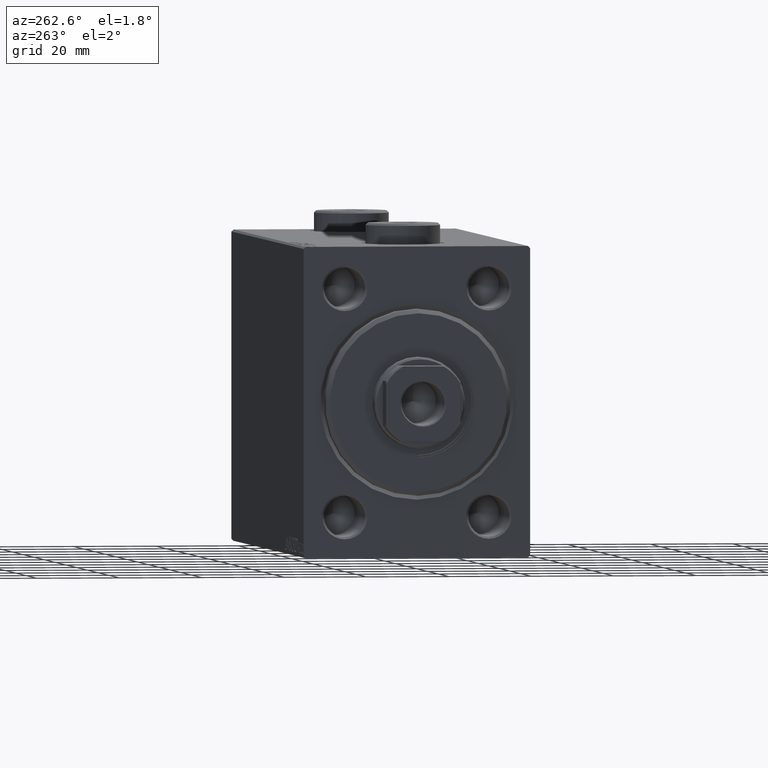
[diagram: clean part render]
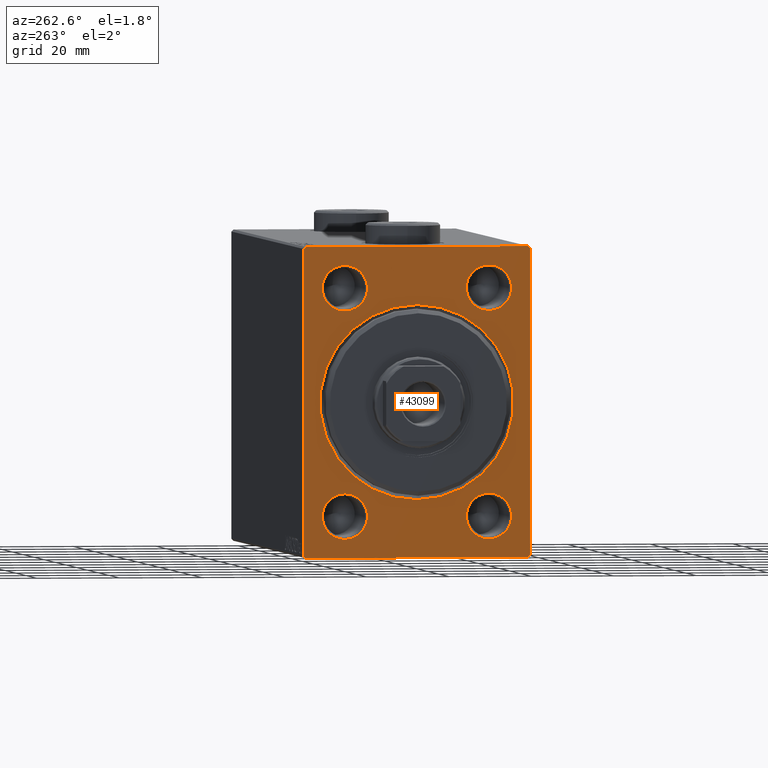
[diagram: same view with one face highlighted and labeled with its STEP entity id]
A machine part, auxiliary view. The second image highlights one B-rep face of the part: STEP entity #43099.
In plain terms, the highlighted planar face has unit normal (1, 0, 0).
Its self-contained STEP definition (entity closure, byte-faithful):
#1348 = EDGE_CURVE ( 'NONE', #14401, #13670, #22724, .T. ) ;
#1731 = CARTESIAN_POINT ( 'NONE',  ( 0.000000000000000000, -27.00000000000002487, 37.49999999999998579 ) ) ;
#2017 = DIRECTION ( 'NONE',  ( 1.000000000000000000, 0.000000000000000000, 0.000000000000000000 ) ) ;
#2222 = AXIS2_PLACEMENT_3D ( 'NONE', #4614, #40127, #26298 ) ;
#2449 = VERTEX_POINT ( 'NONE', #6795 ) ;
#2514 = EDGE_CURVE ( 'NONE', #2449, #12389, #35767, .T. ) ;
#2775 = EDGE_CURVE ( 'NONE', #12690, #31552, #39463, .T. ) ;
#3014 = DIRECTION ( 'NONE',  ( -0.000000000000000000, 0.7071067811865474617, -0.7071067811865474617 ) ) ;
#3308 = DIRECTION ( 'NONE',  ( 0.000000000000000000, 0.000000000000000000, -1.000000000000000000 ) ) ;
#3754 = CARTESIAN_POINT ( 'NONE',  ( 0.000000000000000000, 17.50000000000000000, 27.50000000000000000 ) ) ;
#3806 = CARTESIAN_POINT ( 'NONE',  ( 0.000000000000000000, 17.50000000000000000, 32.99999999999999289 ) ) ;
#4509 = CARTESIAN_POINT ( 'NONE',  ( 0.000000000000000000, 27.00000000000002487, 37.50000000000000000 ) ) ;
#4614 = CARTESIAN_POINT ( 'NONE',  ( 0.000000000000000000, 17.50000000000000000, -27.49999999999999645 ) ) ;
#4661 = LINE ( 'NONE', #14808, #12765 ) ;
#4835 = ORIENTED_EDGE ( 'NONE', *, *, #27031, .T. ) ;
#5045 = LINE ( 'NONE', #33177, #45101 ) ;
#5227 = ORIENTED_EDGE ( 'NONE', *, *, #45583, .T. ) ;
#5381 = CARTESIAN_POINT ( 'NONE',  ( 0.000000000000000000, -27.49999999999999645, 37.49999999999998579 ) ) ;
#5716 = VERTEX_POINT ( 'NONE', #29584 ) ;
#6065 = DIRECTION ( 'NONE',  ( 1.000000000000000000, 0.000000000000000000, 0.000000000000000000 ) ) ;
#6083 = DIRECTION ( 'NONE',  ( 1.000000000000000000, 0.000000000000000000, 0.000000000000000000 ) ) ;
#6203 = EDGE_LOOP ( 'NONE', ( #8831, #17241 ) ) ;
#6267 = FACE_OUTER_BOUND ( 'NONE', #39644, .T. ) ;
#6795 = CARTESIAN_POINT ( 'NONE',  ( 0.000000000000000000, -17.50000000000000000, -32.99999999999998579 ) ) ;
#7115 = CARTESIAN_POINT ( 'NONE',  ( 0.000000000000000000, 27.50000000000000355, -37.00000000000001421 ) ) ;
#7696 = ORIENTED_EDGE ( 'NONE', *, *, #45291, .F. ) ;
#8155 = CARTESIAN_POINT ( 'NONE',  ( 0.000000000000000000, -17.50000000000000000, -27.49999999999999645 ) ) ;
#8412 = CIRCLE ( 'NONE', #41556, 5.499999999999987566 ) ;
#8831 = ORIENTED_EDGE ( 'NONE', *, *, #38627, .T. ) ;
#9048 = DIRECTION ( 'NONE',  ( 0.000000000000000000, 0.000000000000000000, -1.000000000000000000 ) ) ;
#9049 = DIRECTION ( 'NONE',  ( 1.000000000000000000, 0.000000000000000000, 0.000000000000000000 ) ) ;
#9109 = LINE ( 'NONE', #23399, #16110 ) ;
#9626 = CARTESIAN_POINT ( 'NONE',  ( 0.000000000000000000, 17.50000000000000000, -32.99999999999998579 ) ) ;
#9664 = CARTESIAN_POINT ( 'NONE',  ( 0.000000000000000000, 17.50000000000000000, -27.49999999999999645 ) ) ;
#9759 = EDGE_LOOP ( 'NONE', ( #20928, #35272 ) ) ;
#10249 = DIRECTION ( 'NONE',  ( 1.000000000000000000, 0.000000000000000000, 0.000000000000000000 ) ) ;
#11249 = EDGE_CURVE ( 'NONE', #30751, #24903, #38820, .T. ) ;
#11486 = VECTOR ( 'NONE', #22165, 999.9999999999998863 ) ;
#12053 = AXIS2_PLACEMENT_3D ( 'NONE', #9664, #12216, #29758 ) ;
#12110 = CARTESIAN_POINT ( 'NONE',  ( 0.000000000000000000, -26.99999999999996803, -37.50000000000000000 ) ) ;
#12143 = CARTESIAN_POINT ( 'NONE',  ( 0.000000000000000000, -17.50000000000000000, 32.99999999999999289 ) ) ;
#12216 = DIRECTION ( 'NONE',  ( 1.000000000000000000, 0.000000000000000000, 0.000000000000000000 ) ) ;
#12389 = VERTEX_POINT ( 'NONE', #19517 ) ;
#12640 = VERTEX_POINT ( 'NONE', #1731 ) ;
#12690 = VERTEX_POINT ( 'NONE', #12110 ) ;
#12757 = VECTOR ( 'NONE', #3014, 1000.000000000000114 ) ;
#12765 = VECTOR ( 'NONE', #22420, 1000.000000000000000 ) ;
#13008 = DIRECTION ( 'NONE',  ( 0.000000000000000000, 0.000000000000000000, -1.000000000000000000 ) ) ;
#13183 = FACE_BOUND ( 'NONE', #9759, .T. ) ;
#13403 = ORIENTED_EDGE ( 'NONE', *, *, #32455, .T. ) ;
#13670 = VERTEX_POINT ( 'NONE', #45274 ) ;
#14401 = VERTEX_POINT ( 'NONE', #7115 ) ;
#14596 = VERTEX_POINT ( 'NONE', #15906 ) ;
#14808 = CARTESIAN_POINT ( 'NONE',  ( 0.000000000000000000, 27.49999999999999645, 37.50000000000000000 ) ) ;
#14842 = EDGE_CURVE ( 'NONE', #12389, #2449, #27190, .T. ) ;
#15011 = EDGE_LOOP ( 'NONE', ( #22005, #13403 ) ) ;
#15098 = EDGE_CURVE ( 'NONE', #12690, #13670, #9109, .T. ) ;
#15551 = DIRECTION ( 'NONE',  ( 0.000000000000000000, -9.251858538542971581E-17, 1.000000000000000000 ) ) ;
#15769 = CARTESIAN_POINT ( 'NONE',  ( 0.000000000000000000, 17.50000000000000000, 27.50000000000000000 ) ) ;
#15906 = CARTESIAN_POINT ( 'NONE',  ( 0.000000000000000000, 17.50000000000000000, -22.00000000000000711 ) ) ;
#16110 = VECTOR ( 'NONE', #44588, 1000.000000000000000 ) ;
#16937 = CARTESIAN_POINT ( 'NONE',  ( 0.000000000000000000, 0.000000000000000000, 0.000000000000000000 ) ) ;
#17066 = CIRCLE ( 'NONE', #23719, 23.50000000000000355 ) ;
#17241 = ORIENTED_EDGE ( 'NONE', *, *, #41089, .T. ) ;
#18481 = VERTEX_POINT ( 'NONE', #9626 ) ;
#19434 = CARTESIAN_POINT ( 'NONE',  ( 0.000000000000000000, 27.49999999999999645, 37.00000000000002842 ) ) ;
#19444 = DIRECTION ( 'NONE',  ( 0.000000000000000000, 0.000000000000000000, -1.000000000000000000 ) ) ;
#19450 = CIRCLE ( 'NONE', #29033, 5.499999999999987566 ) ;
#19517 = CARTESIAN_POINT ( 'NONE',  ( 0.000000000000000000, -17.50000000000000000, -22.00000000000000711 ) ) ;
#19937 = DIRECTION ( 'NONE',  ( 1.000000000000000000, 0.000000000000000000, 0.000000000000000000 ) ) ;
#20128 = DIRECTION ( 'NONE',  ( 0.000000000000000000, 0.000000000000000000, -1.000000000000000000 ) ) ;
#20928 = ORIENTED_EDGE ( 'NONE', *, *, #14842, .T. ) ;
#21270 = AXIS2_PLACEMENT_3D ( 'NONE', #33602, #2017, #41209 ) ;
#22005 = ORIENTED_EDGE ( 'NONE', *, *, #32699, .T. ) ;
#22165 = DIRECTION ( 'NONE',  ( -0.000000000000000000, -0.7071067811865574537, 0.7071067811865376918 ) ) ;
#22278 = EDGE_CURVE ( 'NONE', #18481, #14596, #30946, .T. ) ;
#22420 = DIRECTION ( 'NONE',  ( 0.000000000000000000, -1.000000000000000000, -2.523234146875355998E-16 ) ) ;
#22724 = LINE ( 'NONE', #32647, #35724 ) ;
#23134 = VERTEX_POINT ( 'NONE', #35304 ) ;
#23258 = ORIENTED_EDGE ( 'NONE', *, *, #28662, .T. ) ;
#23399 = CARTESIAN_POINT ( 'NONE',  ( 0.000000000000000000, -27.49999999999999645, -37.50000000000000000 ) ) ;
#23719 = AXIS2_PLACEMENT_3D ( 'NONE', #16937, #10249, #31025 ) ;
#23801 = FACE_BOUND ( 'NONE', #6203, .T. ) ;
#23888 = VERTEX_POINT ( 'NONE', #4509 ) ;
#24903 = VERTEX_POINT ( 'NONE', #41598 ) ;
#25120 = ORIENTED_EDGE ( 'NONE', *, *, #1348, .T. ) ;
#25964 = DIRECTION ( 'NONE',  ( 0.000000000000000000, -0.7071067811865474617, -0.7071067811865474617 ) ) ;
#26298 = DIRECTION ( 'NONE',  ( 0.000000000000000000, 0.000000000000000000, -1.000000000000000000 ) ) ;
#26575 = PLANE ( 'NONE',  #44447 ) ;
#26780 = VECTOR ( 'NONE', #15551, 1000.000000000000000 ) ;
#27031 = EDGE_CURVE ( 'NONE', #24903, #30751, #17066, .T. ) ;
#27190 = CIRCLE ( 'NONE', #21270, 5.499999999999991118 ) ;
#27501 = FACE_BOUND ( 'NONE', #36083, .T. ) ;
#28662 = EDGE_CURVE ( 'NONE', #43437, #12640, #5045, .T. ) ;
#29033 = AXIS2_PLACEMENT_3D ( 'NONE', #36484, #9049, #30046 ) ;
#29392 = DIRECTION ( 'NONE',  ( 1.000000000000000000, 0.000000000000000000, 0.000000000000000000 ) ) ;
#29417 = CARTESIAN_POINT ( 'NONE',  ( 0.000000000000000000, 27.50000000000000355, -37.50000000000000000 ) ) ;
#29567 = CARTESIAN_POINT ( 'NONE',  ( 0.000000000000000000, -26.99999999999996803, -37.50000000000000000 ) ) ;
#29584 = CARTESIAN_POINT ( 'NONE',  ( 0.000000000000000000, -17.50000000000000000, 22.00000000000001066 ) ) ;
#29617 = AXIS2_PLACEMENT_3D ( 'NONE', #15769, #6065, #20128 ) ;
#29746 = DIRECTION ( 'NONE',  ( -0.000000000000000000, 0.7071067811865474617, 0.7071067811865474617 ) ) ;
#29758 = DIRECTION ( 'NONE',  ( 0.000000000000000000, 0.000000000000000000, -1.000000000000000000 ) ) ;
#29896 = CARTESIAN_POINT ( 'NONE',  ( 0.000000000000000000, 0.000000000000000000, 0.000000000000000000 ) ) ;
#30046 = DIRECTION ( 'NONE',  ( 0.000000000000000000, 0.000000000000000000, -1.000000000000000000 ) ) ;
#30150 = VERTEX_POINT ( 'NONE', #3806 ) ;
#30606 = CARTESIAN_POINT ( 'NONE',  ( 0.000000000000000000, -27.49999999999999645, -36.99999999999998579 ) ) ;
#30751 = VERTEX_POINT ( 'NONE', #32843 ) ;
#30789 = CARTESIAN_POINT ( 'NONE',  ( 0.000000000000000000, -17.50000000000000000, 27.50000000000000000 ) ) ;
#30946 = CIRCLE ( 'NONE', #2222, 5.499999999999991118 ) ;
#31025 = DIRECTION ( 'NONE',  ( 0.000000000000000000, 0.000000000000000000, -1.000000000000000000 ) ) ;
#31097 = CIRCLE ( 'NONE', #29617, 5.499999999999987566 ) ;
#31552 = VERTEX_POINT ( 'NONE', #30606 ) ;
#31663 = EDGE_CURVE ( 'NONE', #14401, #34109, #40230, .T. ) ;
#32455 = EDGE_CURVE ( 'NONE', #5716, #34616, #8412, .T. ) ;
#32647 = CARTESIAN_POINT ( 'NONE',  ( 0.000000000000000000, 27.50000000000000355, -37.00000000000001421 ) ) ;
#32699 = EDGE_CURVE ( 'NONE', #34616, #5716, #19450, .T. ) ;
#32842 = AXIS2_PLACEMENT_3D ( 'NONE', #8155, #29392, #42976 ) ;
#32843 = CARTESIAN_POINT ( 'NONE',  ( 0.000000000000000000, 2.877919977996280715E-15, -23.50000000000000355 ) ) ;
#33143 = CARTESIAN_POINT ( 'NONE',  ( 0.000000000000000000, -27.49999999999999645, 37.00000000000001421 ) ) ;
#33177 = CARTESIAN_POINT ( 'NONE',  ( 0.000000000000000000, -27.49999999999999645, 37.00000000000001421 ) ) ;
#33563 = DIRECTION ( 'NONE',  ( 0.000000000000000000, 0.000000000000000000, -1.000000000000000000 ) ) ;
#33602 = CARTESIAN_POINT ( 'NONE',  ( 0.000000000000000000, -17.50000000000000000, -27.49999999999999645 ) ) ;
#34109 = VERTEX_POINT ( 'NONE', #19434 ) ;
#34193 = VECTOR ( 'NONE', #19444, 1000.000000000000000 ) ;
#34400 = DIRECTION ( 'NONE',  ( 1.000000000000000000, 0.000000000000000000, 0.000000000000000000 ) ) ;
#34420 = AXIS2_PLACEMENT_3D ( 'NONE', #29896, #19937, #33563 ) ;
#34611 = CARTESIAN_POINT ( 'NONE',  ( 0.000000000000000000, 27.00000000000002487, 37.50000000000000000 ) ) ;
#34616 = VERTEX_POINT ( 'NONE', #12143 ) ;
#35272 = ORIENTED_EDGE ( 'NONE', *, *, #2514, .T. ) ;
#35277 = ORIENTED_EDGE ( 'NONE', *, *, #22278, .T. ) ;
#35304 = CARTESIAN_POINT ( 'NONE',  ( 0.000000000000000000, 17.50000000000000000, 22.00000000000001066 ) ) ;
#35724 = VECTOR ( 'NONE', #25964, 1000.000000000000114 ) ;
#35767 = CIRCLE ( 'NONE', #32842, 5.499999999999991118 ) ;
#35871 = ORIENTED_EDGE ( 'NONE', *, *, #42580, .T. ) ;
#36083 = EDGE_LOOP ( 'NONE', ( #4835, #40035 ) ) ;
#36484 = CARTESIAN_POINT ( 'NONE',  ( 0.000000000000000000, -17.50000000000000000, 27.50000000000000000 ) ) ;
#36762 = EDGE_LOOP ( 'NONE', ( #35871, #35277 ) ) ;
#37067 = CIRCLE ( 'NONE', #12053, 5.499999999999991118 ) ;
#37211 = LINE ( 'NONE', #5381, #34193 ) ;
#37753 = AXIS2_PLACEMENT_3D ( 'NONE', #3754, #39036, #3308 ) ;
#37860 = FACE_BOUND ( 'NONE', #36762, .T. ) ;
#38627 = EDGE_CURVE ( 'NONE', #30150, #23134, #31097, .T. ) ;
#38820 = CIRCLE ( 'NONE', #34420, 23.50000000000000355 ) ;
#38922 = ORIENTED_EDGE ( 'NONE', *, *, #31663, .F. ) ;
#39036 = DIRECTION ( 'NONE',  ( 1.000000000000000000, 0.000000000000000000, 0.000000000000000000 ) ) ;
#39463 = LINE ( 'NONE', #29567, #11486 ) ;
#39644 = EDGE_LOOP ( 'NONE', ( #7696, #23258, #42517, #5227, #38922, #25120, #40318, #43513 ) ) ;
#40035 = ORIENTED_EDGE ( 'NONE', *, *, #11249, .T. ) ;
#40127 = DIRECTION ( 'NONE',  ( 1.000000000000000000, 0.000000000000000000, 0.000000000000000000 ) ) ;
#40230 = LINE ( 'NONE', #29417, #26780 ) ;
#40318 = ORIENTED_EDGE ( 'NONE', *, *, #15098, .F. ) ;
#40634 = CARTESIAN_POINT ( 'NONE',  ( 0.000000000000000000, 0.000000000000000000, 0.000000000000000000 ) ) ;
#41089 = EDGE_CURVE ( 'NONE', #23134, #30150, #45114, .T. ) ;
#41209 = DIRECTION ( 'NONE',  ( 0.000000000000000000, 0.000000000000000000, -1.000000000000000000 ) ) ;
#41318 = FACE_BOUND ( 'NONE', #15011, .T. ) ;
#41556 = AXIS2_PLACEMENT_3D ( 'NONE', #30789, #6083, #13008 ) ;
#41598 = CARTESIAN_POINT ( 'NONE',  ( 0.000000000000000000, 0.000000000000000000, 23.50000000000000355 ) ) ;
#42272 = EDGE_CURVE ( 'NONE', #23888, #12640, #4661, .T. ) ;
#42517 = ORIENTED_EDGE ( 'NONE', *, *, #42272, .F. ) ;
#42580 = EDGE_CURVE ( 'NONE', #14596, #18481, #37067, .T. ) ;
#42976 = DIRECTION ( 'NONE',  ( 0.000000000000000000, 0.000000000000000000, -1.000000000000000000 ) ) ;
#43099 = ADVANCED_FACE ( 'NONE', ( #27501, #13183, #41318, #23801, #37860, #6267 ), #26575, .F. ) ;
#43437 = VERTEX_POINT ( 'NONE', #33143 ) ;
#43513 = ORIENTED_EDGE ( 'NONE', *, *, #2775, .T. ) ;
#44447 = AXIS2_PLACEMENT_3D ( 'NONE', #40634, #34400, #9048 ) ;
#44588 = DIRECTION ( 'NONE',  ( 0.000000000000000000, 1.000000000000000000, 0.000000000000000000 ) ) ;
#44969 = LINE ( 'NONE', #34611, #12757 ) ;
#45101 = VECTOR ( 'NONE', #29746, 1000.000000000000114 ) ;
#45114 = CIRCLE ( 'NONE', #37753, 5.499999999999987566 ) ;
#45274 = CARTESIAN_POINT ( 'NONE',  ( 0.000000000000000000, 27.00000000000001776, -37.50000000000000000 ) ) ;
#45291 = EDGE_CURVE ( 'NONE', #43437, #31552, #37211, .T. ) ;
#45583 = EDGE_CURVE ( 'NONE', #23888, #34109, #44969, .T. ) ;